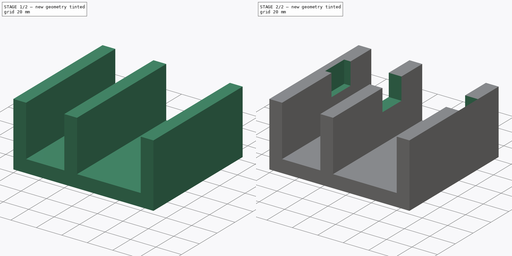
[diagram: build sequence overview — one tinted view per stage of 2, left to right]
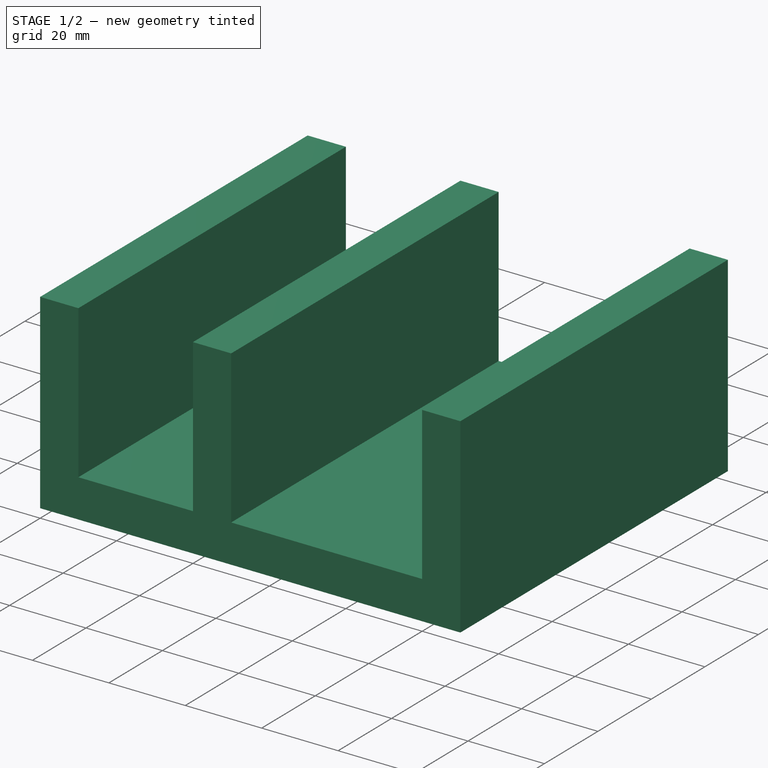
[diagram: stage 1 of 2 — iso view after this stage's code; geometry added in this stage tinted green]
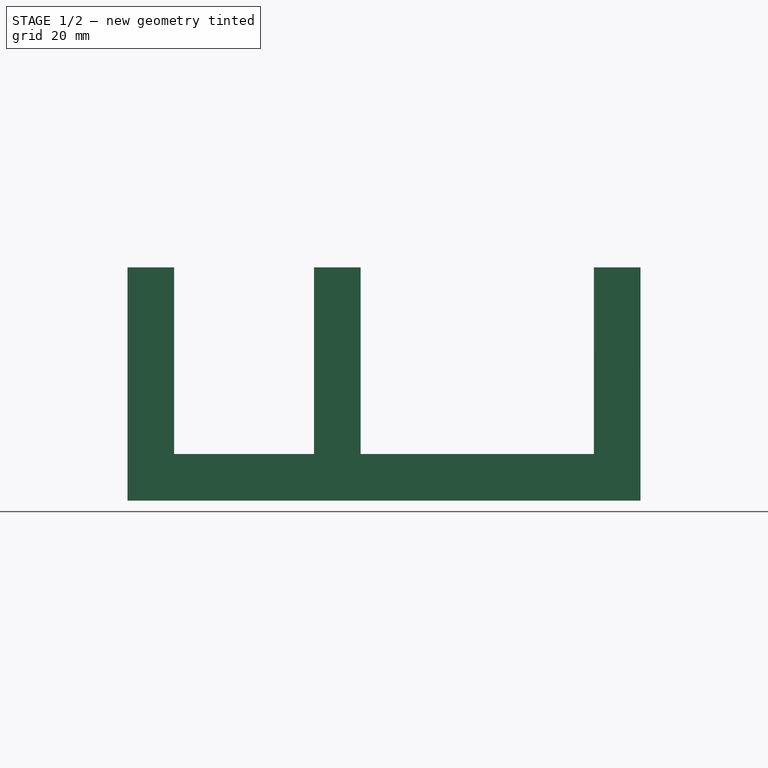
[diagram: stage 1 of 2 — front view after this stage's code; geometry added in this stage tinted green]
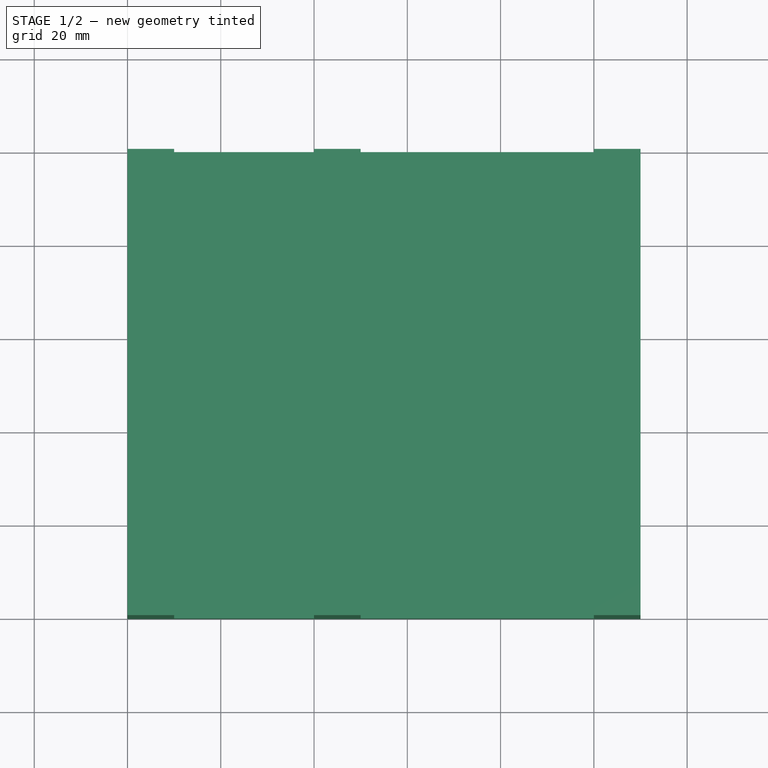
[diagram: stage 1 of 2 — top view after this stage's code; geometry added in this stage tinted green]
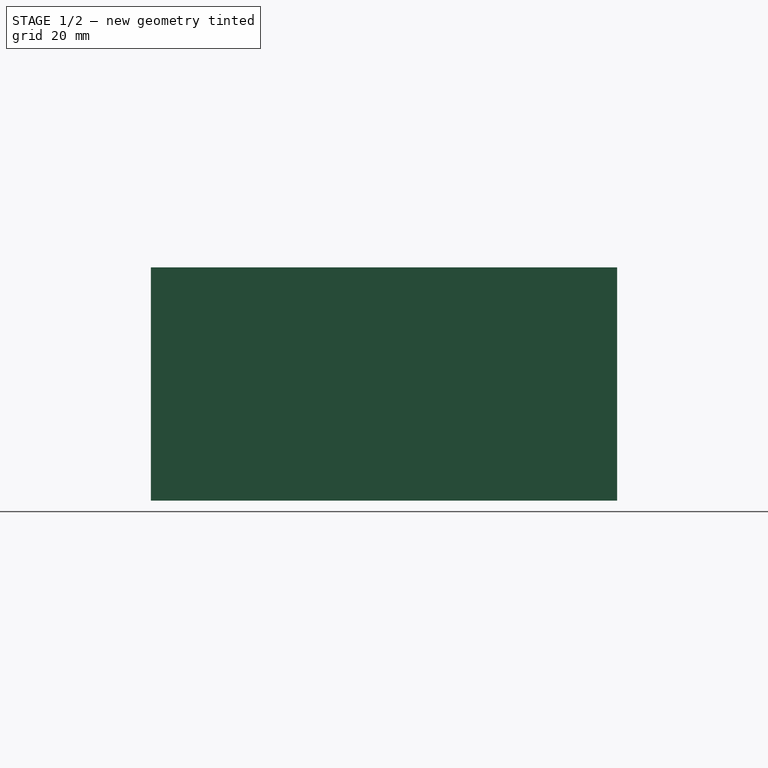
[diagram: stage 1 of 2 — right view after this stage's code; geometry added in this stage tinted green]
FCSTD DOCUMENT  (FreeCAD 0.14R2923 (Git))
Label: PocketTest
License: CC-BY 3.0
LicenseURL: http://creativecommons.org/licenses/by/3.0/
objects: Sketcher::SketchObject×3, PartDesign::Plane×2, PartDesign::Pocket×2, PartDesign::Pad×1, App::DocumentObjectGroup×1, PartDesign::Body×1
note: 12 computed .brp shape members not serialized (recipe doc carries the construction recipe); baked Part::Feature solids carry a one-line shape summary decoded from their .brp

FEATURE [Sketcher::SketchObject] Sketch
  Placement = pos=(0,0,0) rot=(0,0.707107,0.707107;3.14159rad)
  Support = -> BaseplaneXZ [back]
  sketch-geometry (12):
    g0: LineSegment StartX=-70 StartY=0 StartZ=0 EndX=-70 EndY=50 EndZ=0
    g1: LineSegment StartX=-70 StartY=50 StartZ=0 EndX=-60 EndY=50 EndZ=0
    g2: LineSegment StartX=-60 StartY=50 StartZ=0 EndX=-60 EndY=10 EndZ=0
    g3: LineSegment StartX=-60 StartY=10 StartZ=0 EndX=-10 EndY=10 EndZ=0
    g4: LineSegment StartX=-10 StartY=10 StartZ=0 EndX=-10 EndY=50 EndZ=0
    g5: LineSegment StartX=-10 StartY=50 StartZ=0 EndX=0 EndY=50 EndZ=0
    g6: LineSegment StartX=0 StartY=50 StartZ=0 EndX=0 EndY=10 EndZ=0
    g7: LineSegment StartX=0 StartY=10 StartZ=0 EndX=30 EndY=10 EndZ=0
    g8: LineSegment StartX=30 StartY=10 StartZ=0 EndX=30 EndY=50 EndZ=0
    g9: LineSegment StartX=30 StartY=50 StartZ=0 EndX=40 EndY=50 EndZ=0
    g10: LineSegment StartX=40 StartY=50 StartZ=0 EndX=40 EndY=0 EndZ=0
    g11: LineSegment StartX=40 StartY=0 StartZ=0 EndX=-70 EndY=0 EndZ=0
  constraints (36):
    c: Vertical(g0)
    c: Coincident(g0,g1)
    c: Horizontal(g1)
    c: Coincident(g1,g2)
    c: Vertical(g2)
    c: Coincident(g2,g3)
    c: Horizontal(g3)
    c: Coincident(g3,g4)
    c: Vertical(g4)
    c: Coincident(g4,g5)
    c: Horizontal(g5)
    c: Coincident(g5,g6)
    c: Vertical(g6)
    c: Coincident(g6,g7)
    c: Horizontal(g7)
    c: Coincident(g7,g8)
    c: Vertical(g8)
    c: Coincident(g8,g9)
    c: Horizontal(g9)
    c: Coincident(g9,g10)
    c: Vertical(g10)
    c: Coincident(g10,g11)
    c: Coincident(g11,g0)
    c: Horizontal(g11)
    c: DistanceX(g1) = 10
    c: DistanceX(g5) = 10
    c: DistanceX(g9) = 10
    c: DistanceY(g2) = -40
    c: DistanceY(g0,g2) = 10
    c: DistanceX(g3) = 50
    c: DistanceX(g7) = 30
    c: PointOnObject(g5,g-2)
    c: DistanceY(g4) = 40
    c: DistanceY(g10) = -50
    c: DistanceY(g6) = -40
    c: PointOnObject(g0,g-1)
FEATURE [PartDesign::Pad] Pad
  Length = 100
  Length2 = 100
  Placement = pos=(0,0,0) rot=(0,0.707107,0.707107;3.14159rad)
  Sketch = -> Sketch
  Type = 0
FEATURE [Sketcher::SketchObject] Sketch001
  Placement = pos=(10,0,0) rot=(0,1,0;1.5708rad)
  Support = -> Pad [Face5]
  sketch-geometry (1):
    g0: Circle CenterX=-33.0572 CenterY=30.0018 CenterZ=0 NormalX=0 NormalY=0 NormalZ=1 Radius=7.72842
FEATURE [App::DocumentObjectGroup] Origin
  Group = -> [BaseplaneXY,BaseplaneXZ,BaseplaneYZ]
FEATURE [PartDesign::Plane] DatumPlane
  Angle = 0
  Placement = pos=(70,0,50) rot=(0,-1,0;1.32582rad)
  References = -> [Pad]
FEATURE [PartDesign::Pocket] Pocket
  BaseFeature = -> Pad
  Length = 0
  Placement = pos=(0,0,0) rot=(0,0.707107,0.707107;3.14159rad)
  Sketch = -> Sketch001
  Type = 3
  UpToFace = -> DatumPlane [Plane]
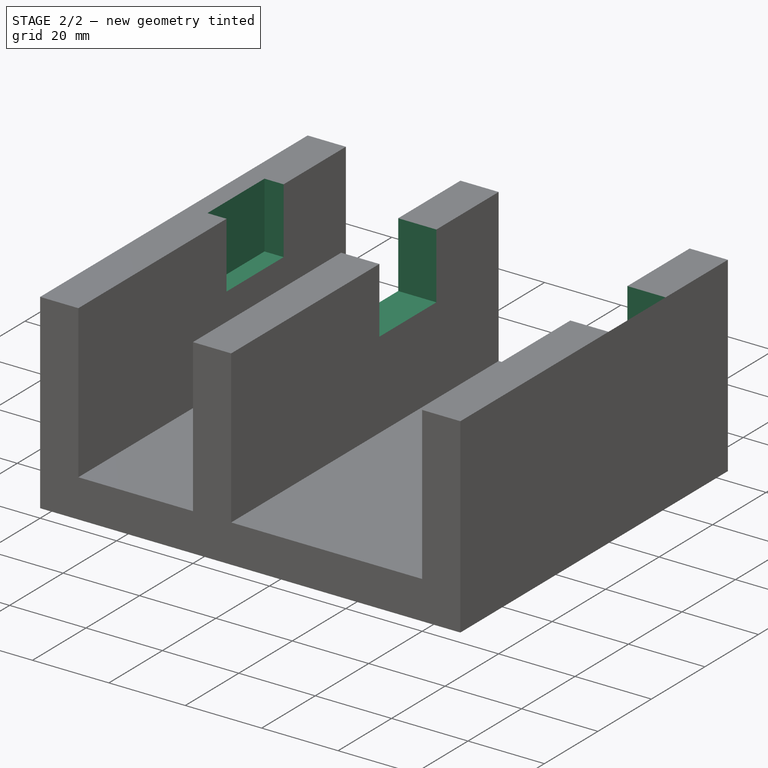
[diagram: stage 2 of 2 — iso view after this stage's code; geometry added in this stage tinted green]
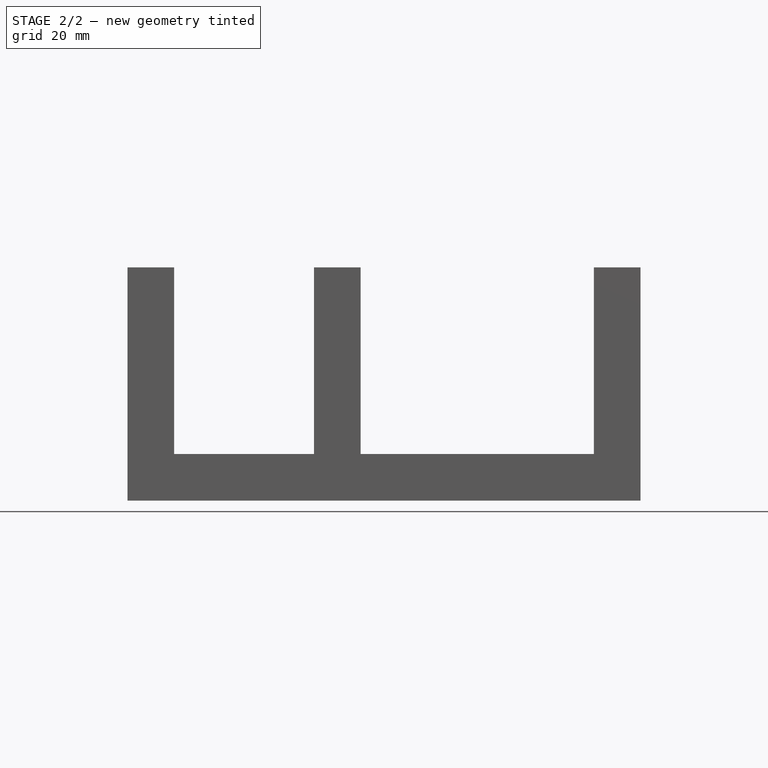
[diagram: stage 2 of 2 — front view after this stage's code; geometry added in this stage tinted green]
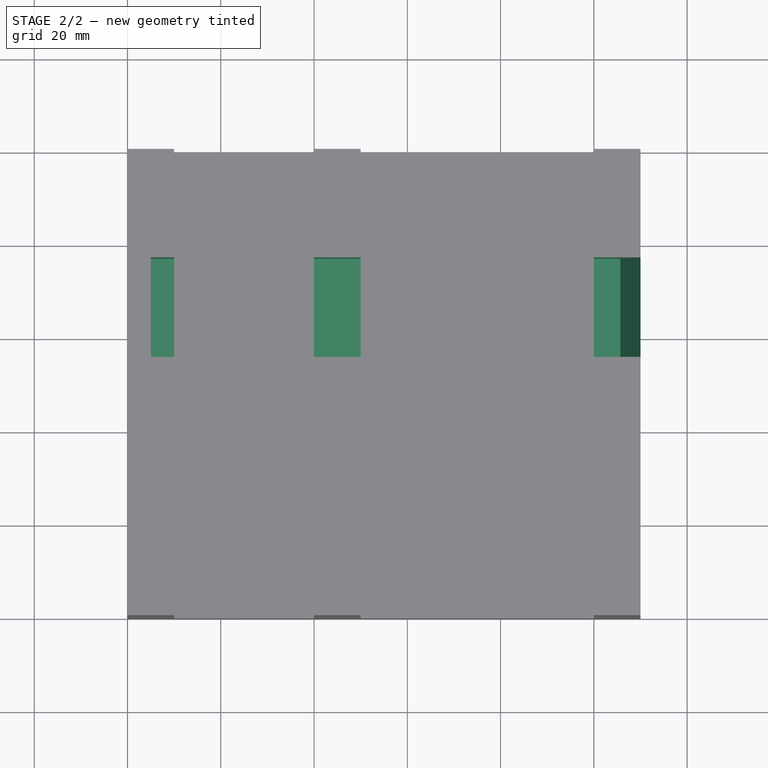
[diagram: stage 2 of 2 — top view after this stage's code; geometry added in this stage tinted green]
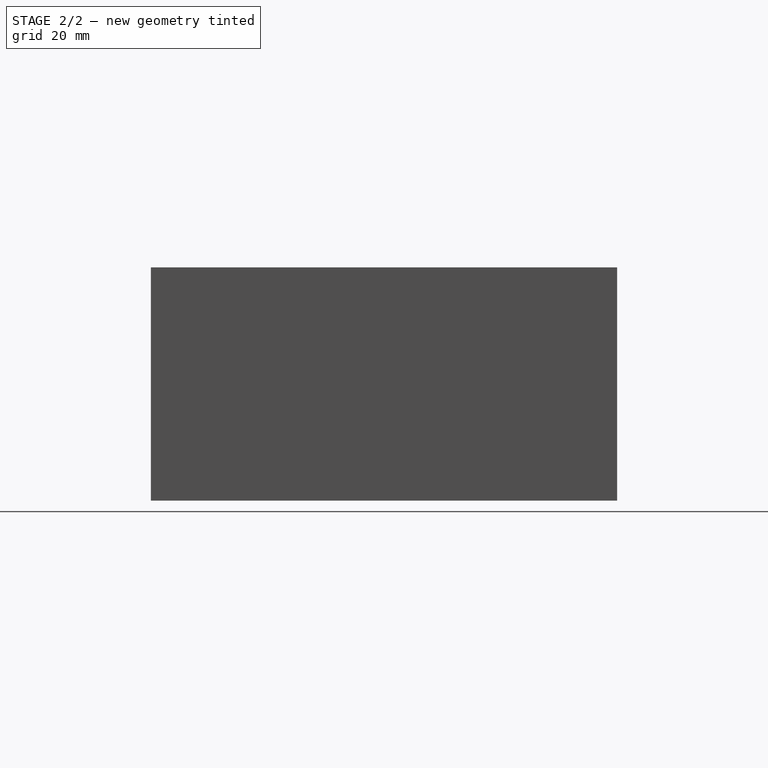
[diagram: stage 2 of 2 — right view after this stage's code; geometry added in this stage tinted green]
FEATURE [PartDesign::Plane] DatumPlane001
  Angle = 0
  Offset = -5
  Placement = pos=(-35,0,0) rot=(0,1,0;1.5708rad)
  References = -> [Pocket]
FEATURE [Sketcher::SketchObject] Sketch002
  Placement = pos=(-35,0,0) rot=(0,1,0;1.5708rad)
  Support = -> DatumPlane001 [front]
  sketch-geometry (4):
    g0: LineSegment StartX=-64.52 StartY=76.7271 StartZ=0 EndX=-32.7811 EndY=76.7271 EndZ=0
    g1: LineSegment StartX=-32.7811 StartY=76.7271 StartZ=0 EndX=-32.7811 EndY=55.3944 EndZ=0
    g2: LineSegment StartX=-32.7811 StartY=55.3944 StartZ=0 EndX=-64.52 EndY=55.3944 EndZ=0
    g3: LineSegment StartX=-64.52 StartY=55.3944 StartZ=0 EndX=-64.52 EndY=76.7271 EndZ=0
  constraints (8):
    c: Coincident(g0,g1)
    c: Coincident(g1,g2)
    c: Coincident(g2,g3)
    c: Coincident(g3,g0)
    c: Horizontal(g0)
    c: Horizontal(g2)
    c: Vertical(g1)
    c: Vertical(g3)
FEATURE [PartDesign::Pocket] Pocket001
  BaseFeature = -> Pocket
  Length = 0
  Placement = pos=(-35,0,0) rot=(0,1,0;1.5708rad)
  Reversed = true
  Sketch = -> Sketch002
  Type = 3
  UpToFace = -> DatumPlane [Plane]
FEATURE [PartDesign::Body] Body
  IsActive = true
  Model = -> [Sketch,Pad,DatumPlane,Sketch001,Pocket,DatumPlane001,Sketch002,Pocket001]
  Tip = -> Pocket001
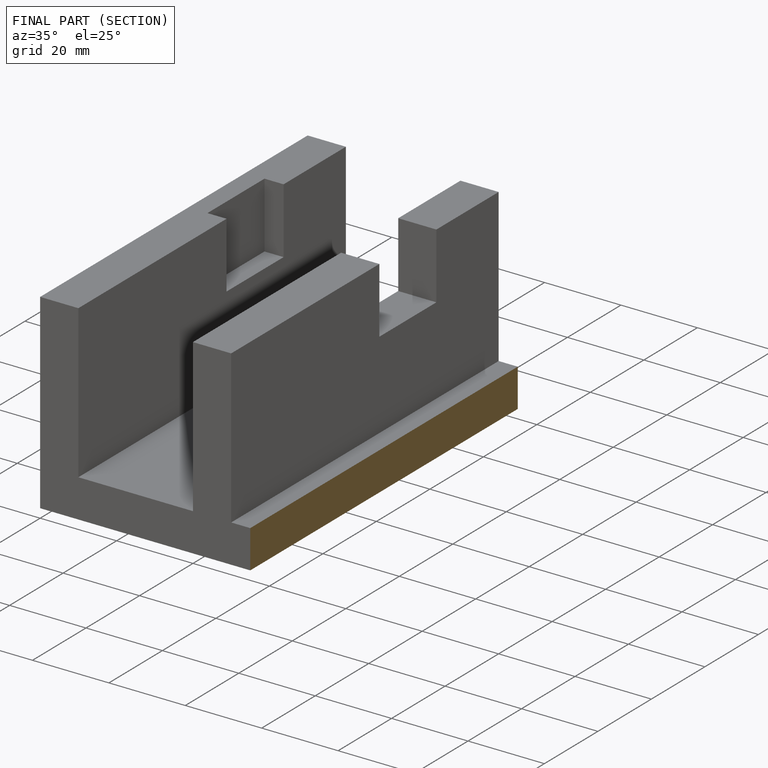
[diagram: finished part — half-section view (interior)]
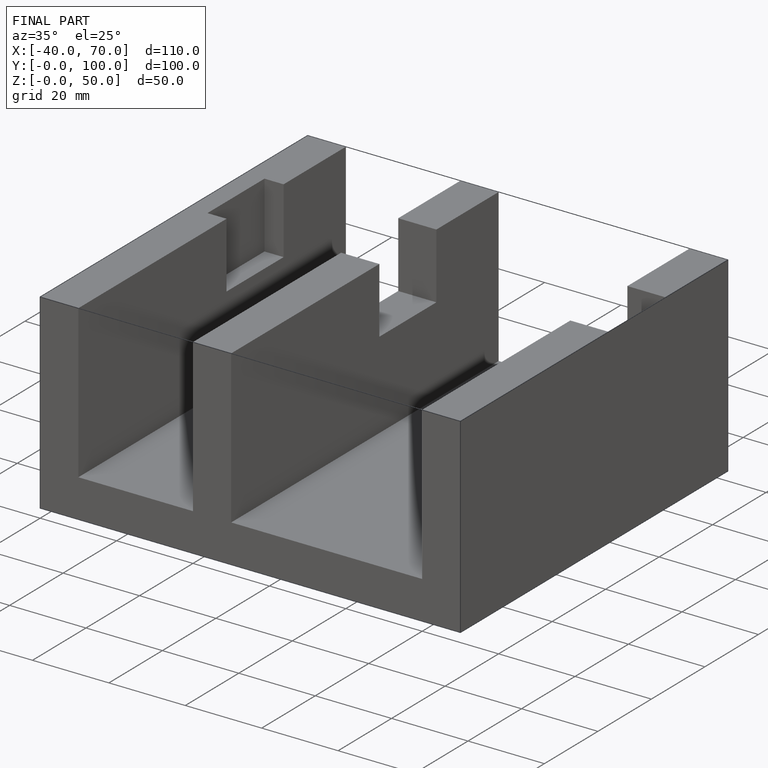
[diagram: finished part — iso view with bounding-box wireframe]
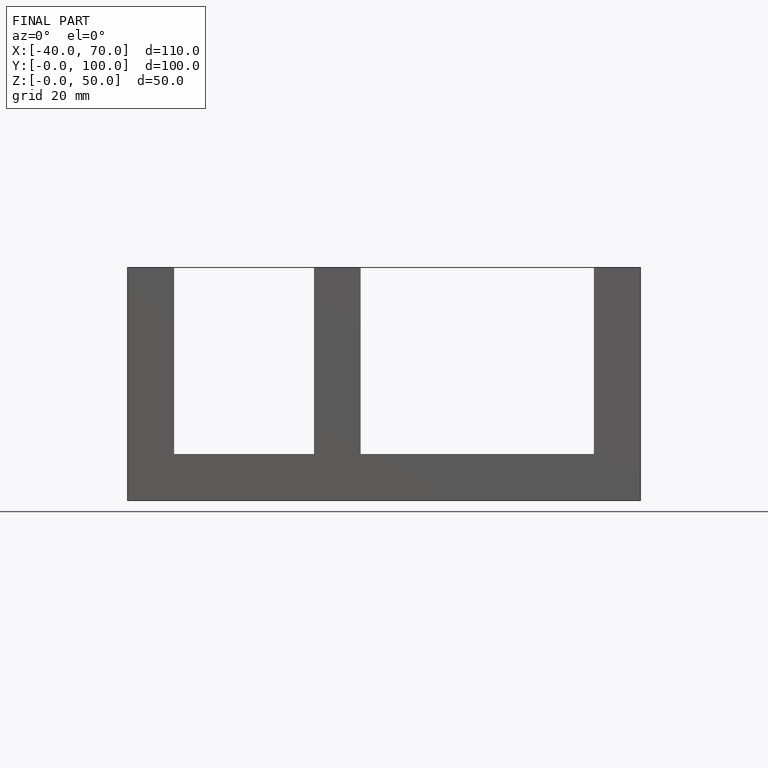
[diagram: finished part — front view with bounding-box wireframe]
